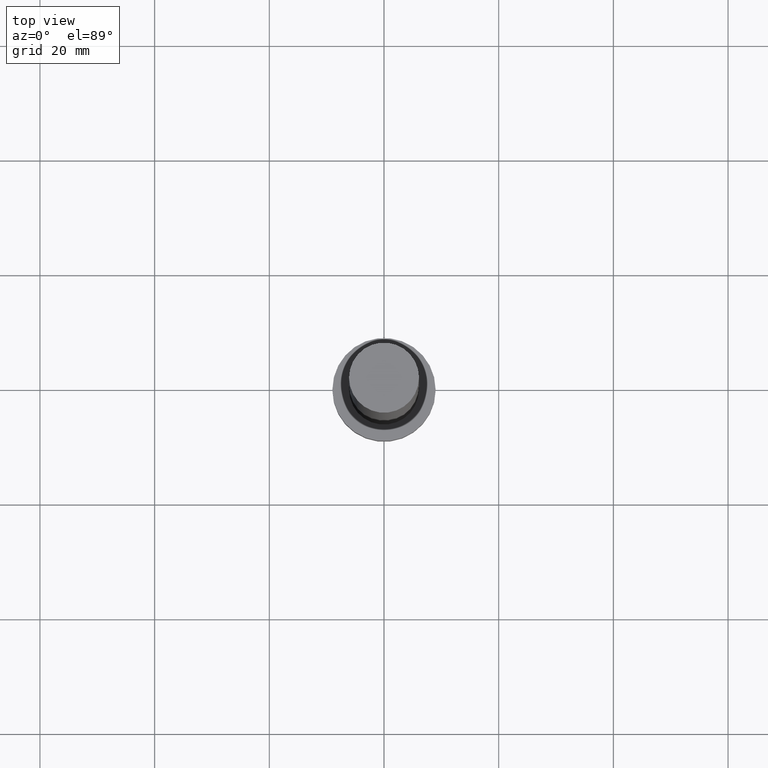
[diagram: clean part render]
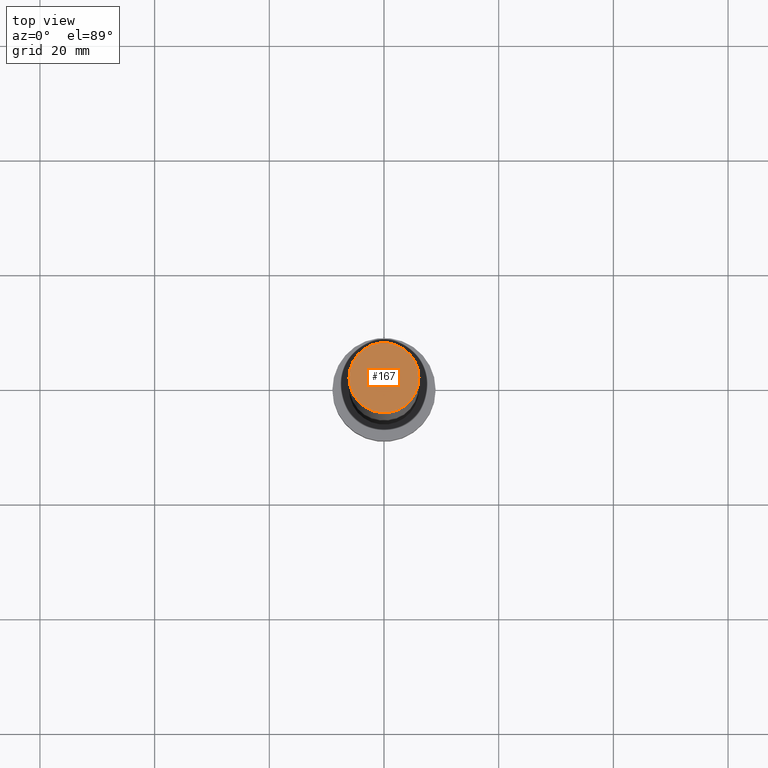
[diagram: same view with one face highlighted and labeled with its STEP entity id]
A machine part, top view. The second image highlights one B-rep face of the part: STEP entity #167.
In plain terms, the highlighted planar face has unit normal (0, 0, 1).
Its self-contained STEP definition (entity closure, byte-faithful):
#3 = ORIENTED_EDGE ( 'NONE', *, *, #207, .T. ) ;
#22 = DIRECTION ( 'NONE',  ( 0.000000000000000000, 0.000000000000000000, 1.000000000000000000 ) ) ;
#27 = CIRCLE ( 'NONE', #93, 6.099999999999999645 ) ;
#32 = FACE_OUTER_BOUND ( 'NONE', #37, .T. ) ;
#37 = EDGE_LOOP ( 'NONE', ( #3, #142 ) ) ;
#41 = DIRECTION ( 'NONE',  ( 1.000000000000000000, 0.000000000000000000, -0.000000000000000000 ) ) ;
#93 = AXIS2_PLACEMENT_3D ( 'NONE', #186, #146, #104 ) ;
#98 = PLANE ( 'NONE',  #237 ) ;
#104 = DIRECTION ( 'NONE',  ( 1.000000000000000000, 0.000000000000000000, 0.000000000000000000 ) ) ;
#106 = CARTESIAN_POINT ( 'NONE',  ( 6.099999999999999645, 7.470345474798854293E-16, 125.0000000000000000 ) ) ;
#135 = CARTESIAN_POINT ( 'NONE',  ( 0.000000000000000000, 0.000000000000000000, 125.0000000000000000 ) ) ;
#140 = CIRCLE ( 'NONE', #202, 6.099999999999999645 ) ;
#142 = ORIENTED_EDGE ( 'NONE', *, *, #198, .T. ) ;
#146 = DIRECTION ( 'NONE',  ( 0.000000000000000000, 0.000000000000000000, 1.000000000000000000 ) ) ;
#148 = CARTESIAN_POINT ( 'NONE',  ( 0.000000000000000000, 0.000000000000000000, 125.0000000000000000 ) ) ;
#159 = DIRECTION ( 'NONE',  ( 0.000000000000000000, 0.000000000000000000, 1.000000000000000000 ) ) ;
#165 = VERTEX_POINT ( 'NONE', #177 ) ;
#167 = ADVANCED_FACE ( 'NONE', ( #32 ), #98, .T. ) ;
#177 = CARTESIAN_POINT ( 'NONE',  ( -6.099999999999999645, 0.000000000000000000, 125.0000000000000000 ) ) ;
#183 = DIRECTION ( 'NONE',  ( 1.000000000000000000, 0.000000000000000000, 0.000000000000000000 ) ) ;
#186 = CARTESIAN_POINT ( 'NONE',  ( 0.000000000000000000, 0.000000000000000000, 125.0000000000000000 ) ) ;
#196 = VERTEX_POINT ( 'NONE', #106 ) ;
#198 = EDGE_CURVE ( 'NONE', #196, #165, #140, .T. ) ;
#202 = AXIS2_PLACEMENT_3D ( 'NONE', #148, #22, #183 ) ;
#207 = EDGE_CURVE ( 'NONE', #165, #196, #27, .T. ) ;
#237 = AXIS2_PLACEMENT_3D ( 'NONE', #135, #159, #41 ) ;